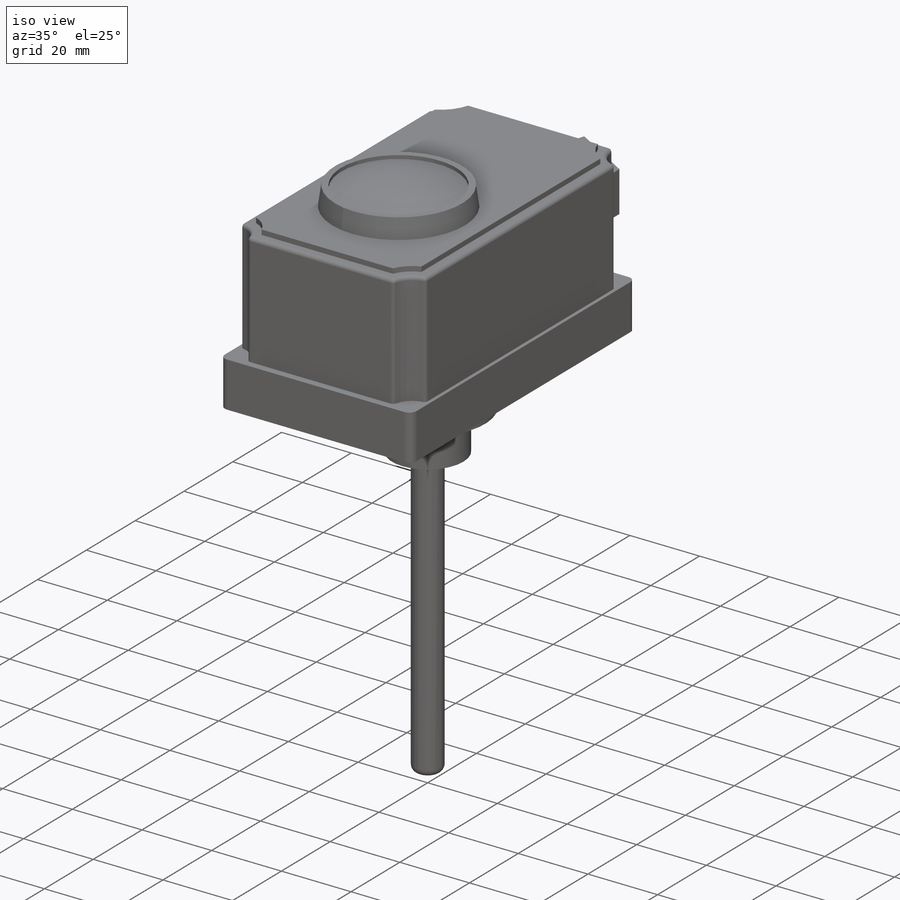
[diagram: iso view]
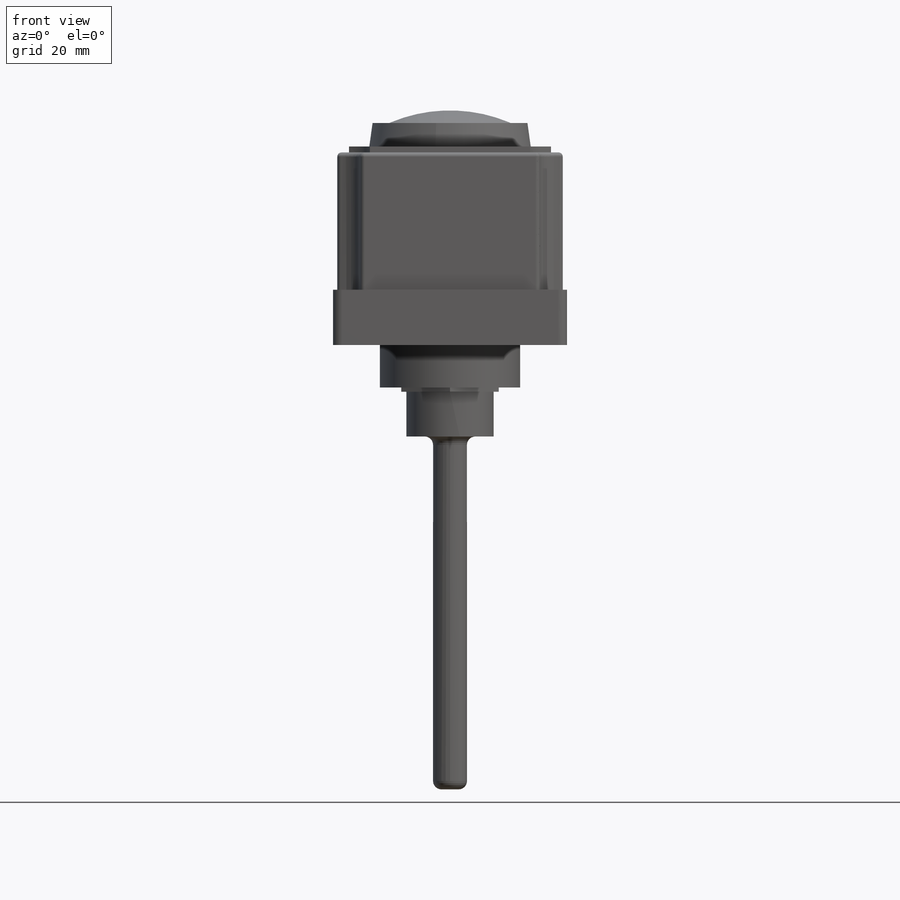
[diagram: front view]
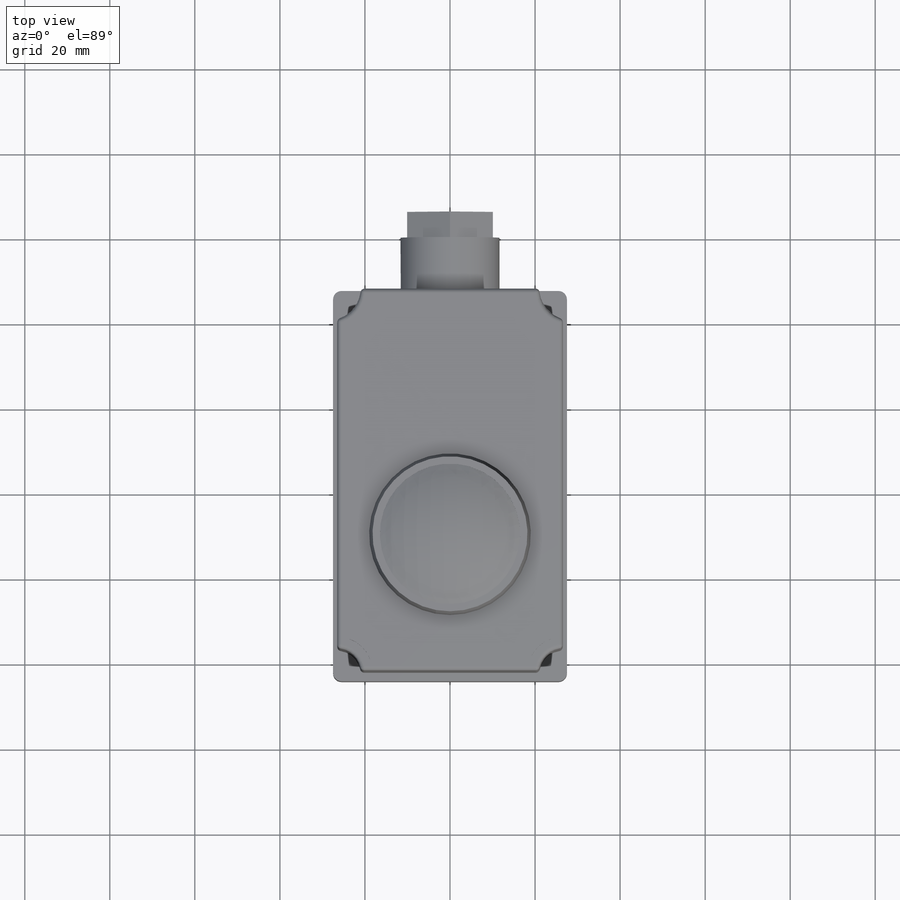
[diagram: top view]
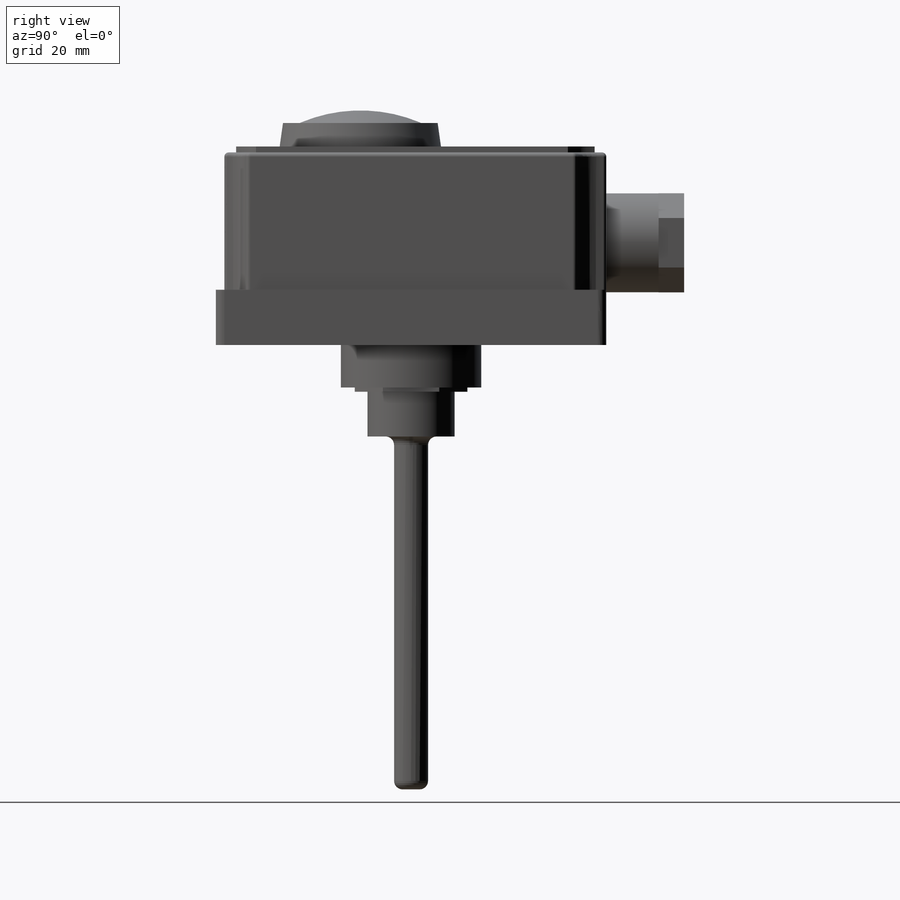
[diagram: right view]
SOLIDWORKS PART (.sldprt)
format: sldprt  version: not decoded by parser v0  size: 483,840 bytes
history: native  units: mm
features: sketch x13, extrude x11, plane x3, fillet x3, cut_extrude x2, material x1, dome x1 (+8 scaffold rows collapsed)
feature tree (42):
  scaffold x8  (default folders/planes/origin — collapsed)
  material  "Materiál <není určen>"
  plane  "Přední rovina"
  plane  "Horní rovina"
  plane  "Pravá rovina"
  sketch  "Skica1"  dims[D1=91.8mm D2=55.0mm]
  extrude  "Přidat vysunutím1"  Depth=8mm
  sketch  "Skica2"
  extrude  "Přidat vysunutím2"  Depth=5mm
  sketch  "Skica3"  dims[D1=42.0mm D2=77.5mm D3=1.0mm D4=2.0mm]
  extrude  "Přidat vysunutím3"  Depth=32.3mm
  sketch  "Skica4"  dims[D1=2.75mm]
  extrude  "Přidat vysunutím4"  Depth=1.4mm
  fillet  "Zaoblit1"  Radius=1mm
  fillet  "Zaoblit2"  Radius=2mm
  sketch  "Skica5"  dims[D1=23.3mm]
  extrude  "Přidat vysunutím5"  Depth=12.3mm
  sketch  "Skica6"  dims[D1=15.5mm]
  extrude  "Přidat vysunutím6"  Depth=6mm
  cut_extrude  "Odebrat vysunutím1"  [1 undecoded]
  sketch  "Skica6<3>"  dims[D19=1.0mm]
  sketch  "Skica9"  dims[D1=38.0mm D2=13.0mm]
  extrude  "Přidat vysunutím8"  Depth=5.5mm
  sketch  "Skica10"  dims[D1=33.0mm]
  cut_extrude  "Odebrat vysunutím2"  Depth=1mm
  dome  "Kopule1"
  sketch  "Skica11"  dims[D1=33.0mm D2=26.5mm]
  extrude  "Přidat vysunutím9"  Depth=10mm
  sketch  "Skica12"
  extrude  "Přidat vysunutím10"  Depth=11mm
  sketch  "Skica13"  dims[D1=20.5mm]
  extrude  "Přidat vysunutím11"  Depth=10.5mm
  sketch  "Skica14"  dims[D1=8.0mm]
  extrude  "Přidat vysunutím12"  Depth=83mm
  fillet  "Zaoblit3"  Radius=2mm
decode coverage: 26 of 30 modeling features carry decoded parameters
note: 1 parameter value undecoded
note: suppression state not decoded; provenance and decode notes live in map.json
